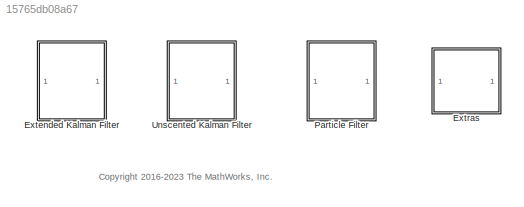
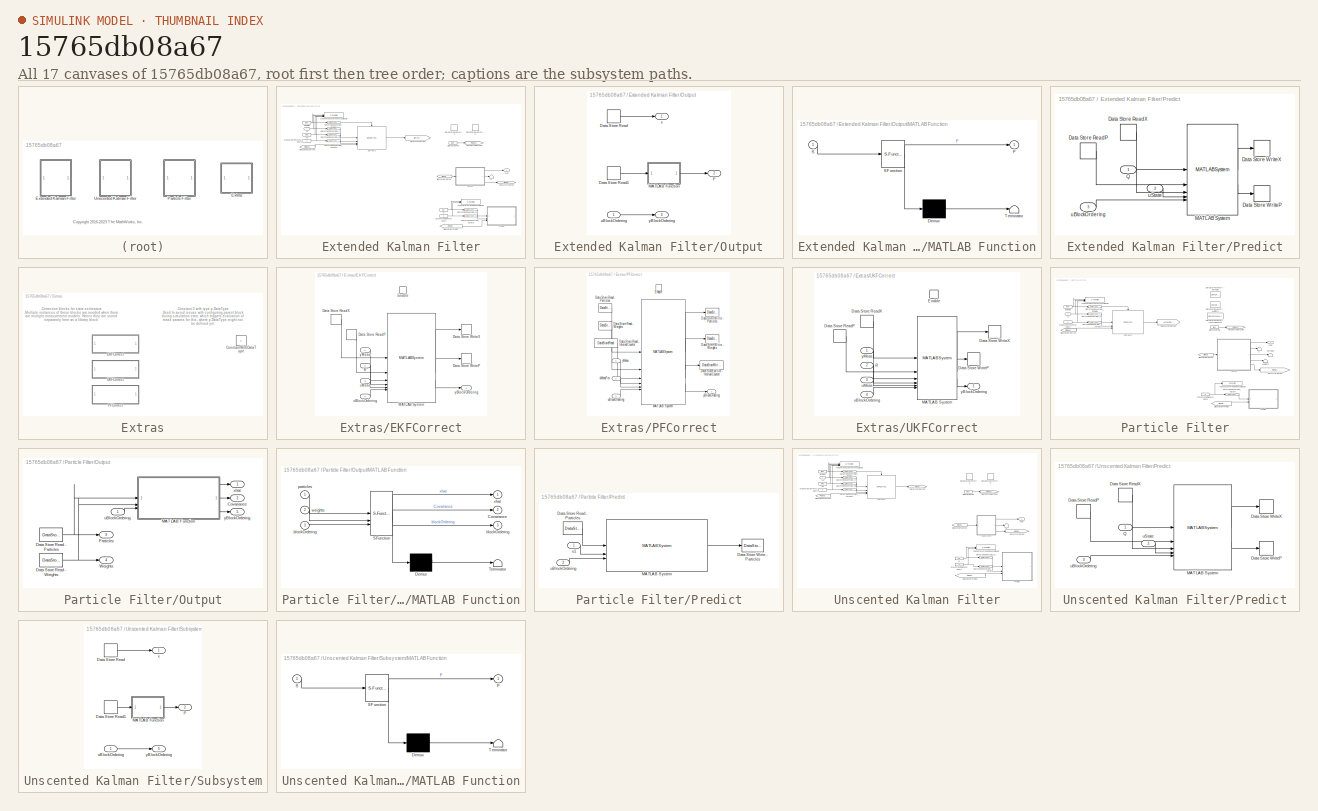
[diagram: thumbnail index - all 17 canvases of the model, root first then tree order]
MODEL slx_15765db08a67
KIND library
CONFIG AbsTol = auto
CONFIG EnableMultiTasking = off
CONFIG FixedStep = auto
CONFIG MaxStep = auto
CONFIG MinStep = auto
CONFIG RelTol = 1e-3
CONFIG SampleTimeConstraint = Unconstrained
CONFIG SolverName = VariableStepAuto
CONFIG StartTime = 0.0
CONFIG StopTime = 10.0
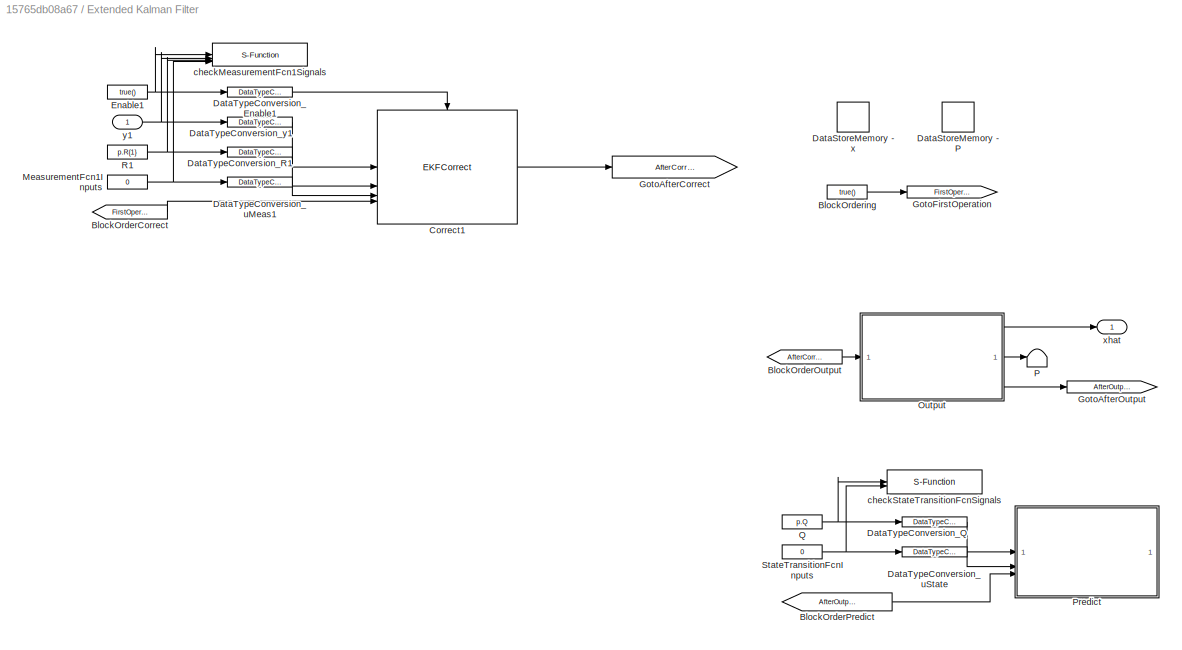
BLOCK [SubSystem] Extended Kalman Filter
BLOCK [From] Extended Kalman Filter/BlockOrderCorrect
  GotoTag = FirstOperation
BLOCK [From] Extended Kalman Filter/BlockOrderOutput
  GotoTag = AfterCorrect
BLOCK [From] Extended Kalman Filter/BlockOrderPredict
  GotoTag = AfterOutput
BLOCK [Constant] Extended Kalman Filter/BlockOrdering
  OutDataTypeStr = boolean
  Value = true()
BLOCK [Reference] Extended Kalman Filter/Correct1  REF=$bdroot/Extras/EKFCorrect
  SourceBlock = $bdroot/Extras/EKFCorrect
  SourceType = EKFCorrect
BLOCK [DataStoreMemory] Extended Kalman Filter/DataStoreMemory - P
  DataStoreName = P
  InitialValue = p.InitialCovariance
  OutDataTypeStr = p.DataType
  ShowAdditionalParam = off
BLOCK [DataStoreMemory] Extended Kalman Filter/DataStoreMemory - x
  DataStoreName = x
  InitialValue = p.InitialState
  OutDataTypeStr = p.DataType
  ShowAdditionalParam = off
BLOCK [DataTypeConversion] Extended Kalman Filter/DataTypeConversion_Enable1
  OutDataTypeStr = boolean
  RndMeth = Floor
  SaturateOnIntegerOverflow = off
BLOCK [DataTypeConversion] Extended Kalman Filter/DataTypeConversion_Q
  OutDataTypeStr = p.DataType
  RndMeth = Floor
  SaturateOnIntegerOverflow = off
BLOCK [DataTypeConversion] Extended Kalman Filter/DataTypeConversion_R1
  OutDataTypeStr = p.DataType
  RndMeth = Floor
  SaturateOnIntegerOverflow = off
BLOCK [DataTypeConversion] Extended Kalman Filter/DataTypeConversion_uMeas1
  OutDataTypeStr = p.DataType
  RndMeth = Floor
  SaturateOnIntegerOverflow = off
BLOCK [DataTypeConversion] Extended Kalman Filter/DataTypeConversion_uState
  OutDataTypeStr = p.DataType
  RndMeth = Floor
  SaturateOnIntegerOverflow = off
BLOCK [DataTypeConversion] Extended Kalman Filter/DataTypeConversion_y1
  OutDataTypeStr = p.DataType
  RndMeth = Floor
  SaturateOnIntegerOverflow = off
BLOCK [Constant] Extended Kalman Filter/Enable1
  SampleTime = p.SampleTimes.MeasurementFcn(1)
  Value = true()
BLOCK [Goto] Extended Kalman Filter/GotoAfterCorrect
  GotoTag = AfterCorrect
BLOCK [Goto] Extended Kalman Filter/GotoAfterOutput
  GotoTag = AfterOutput
BLOCK [Goto] Extended Kalman Filter/GotoFirstOperation
  GotoTag = FirstOperation
BLOCK [Constant] Extended Kalman Filter/MeasurementFcn1Inputs
  OutDataTypeStr = p.DataType
  SampleTime = p.SampleTimes.MeasurementFcn(1)
  Value = 0
BLOCK [SubSystem] Extended Kalman Filter/Output
  SystemSampleTime = p.SampleTimes.Output
  TreatAsAtomicUnit = on
BLOCK [DataStoreRead] Extended Kalman Filter/Output/Data Store Read
  DataStoreName = x
  IndexOptions = Index vector (dialog)
  Indices = 1
  OutputSizes = 1
BLOCK [DataStoreRead] Extended Kalman Filter/Output/Data Store Read1
  DataStoreName = P
  IndexOptions = Index vector (dialog)
  Indices = 1
  OutputSizes = 1
BLOCK [SubSystem] Extended Kalman Filter/Output/MATLAB Function
  ErrorFcn = Stateflow.Translate.translate
  PermitHierarchicalResolution = ExplicitOnly
  SFBlockType = MATLAB Function
  TreatAsAtomicUnit = on
BLOCK [Demux] Extended Kalman Filter/Output/MATLAB Function/ Demux 
  Outputs = 1
BLOCK [S-Function] Extended Kalman Filter/Output/MATLAB Function/ SFunction 
  EnableBusSupport = off
  FunctionName = sf_sfun
  PortCounts = [1 2]
  SFcnIsStateOwnerBlock = off
  SFunctionDeploymentMode = off
  Tag = Stateflow S-Function 3
BLOCK [Terminator] Extended Kalman Filter/Output/MATLAB Function/ Terminator 
BLOCK [Outport] Extended Kalman Filter/Output/MATLAB Function/P
BLOCK [Inport] Extended Kalman Filter/Output/MATLAB Function/S
BLOCK [Outport] Extended Kalman Filter/Output/P
  Port = 2
  VectorParamsAs1DForOutWhenUnconnected = off
BLOCK [Inport] Extended Kalman Filter/Output/uBlockOrdering
BLOCK [Outport] Extended Kalman Filter/Output/x
  VectorParamsAs1DForOutWhenUnconnected = off
BLOCK [Outport] Extended Kalman Filter/Output/yBlockOrdering
  Port = 3
  VectorParamsAs1DForOutWhenUnconnected = off
BLOCK [Terminator] Extended Kalman Filter/P
BLOCK [SubSystem] Extended Kalman Filter/Predict
  SystemSampleTime = p.SampleTimes.StateTransitionFcn
  TreatAsAtomicUnit = on
BLOCK [DataStoreRead] Extended Kalman Filter/Predict/Data Store ReadP
  DataStoreName = P
  IndexOptions = Index vector (dialog)
  Indices = 1
  OutputSizes = 1
BLOCK [DataStoreRead] Extended Kalman Filter/Predict/Data Store ReadX
  DataStoreName = x
  IndexOptions = Index vector (dialog)
  Indices = 1
  OutputSizes = 1
BLOCK [DataStoreWrite] Extended Kalman Filter/Predict/Data Store WriteP
  DataStoreName = P
  IndexOptions = Index vector (dialog)
  Indices = 1
  OutputSizes = 1
BLOCK [DataStoreWrite] Extended Kalman Filter/Predict/Data Store WriteX
  DataStoreName = x
  IndexOptions = Index vector (dialog)
  Indices = 1
  OutputSizes = 1
BLOCK [MATLABSystem] Extended Kalman Filter/Predict/MATLAB System
  DataType = DataType
  DlgParamStruct = pS
  MaskType = matlabshared.tracking.internal.blocks.ekfPredictFcn
  SLFcn = SLFcnsToRegister
  SimulateUsing = Code generation
  System = matlabshared.tracking.internal.blocks.ekfPredictFcn
BLOCK [Inport] Extended Kalman Filter/Predict/Q
  SampleTime = SampleTime
BLOCK [Inport] Extended Kalman Filter/Predict/uBlockOrdering
  Port = 3
  SampleTime = SampleTime
BLOCK [Inport] Extended Kalman Filter/Predict/uState
  Port = 2
  SampleTime = SampleTime
BLOCK [Constant] Extended Kalman Filter/Q
  SampleTime = p.SampleTimes.StateTransitionFcn
  Value = p.Q
BLOCK [Constant] Extended Kalman Filter/R1
  SampleTime = p.SampleTimes.MeasurementFcn(1)
  Value = p.R{1}
BLOCK [Constant] Extended Kalman Filter/StateTransitionFcnInputs
  OutDataTypeStr = p.DataType
  SampleTime = p.SampleTimes.StateTransitionFcn
  Value = 0
BLOCK [S-Function] Extended Kalman Filter/checkMeasurementFcn1Signals
  EnableBusSupport = off
  FunctionName = ekfukfCheckSignals
  Parameters = signalCheck.BlockPath, signalCheck.MeasurementFcn{1}.PortNames, signalCheck.MeasurementFcn{1}.SampleTime, signalCheck.DataType, signalCheck.MeasurementFcn{1}.PortDimensions, 1, signalCheck.MeasurementFcn{1}.HasAdditiveNoise
  SFcnIsStateOwnerBlock = off
  SFunctionDeploymentMode = off
BLOCK [S-Function] Extended Kalman Filter/checkStateTransitionFcnSignals
  EnableBusSupport = off
  FunctionName = ekfukfCheckSignals
  Parameters = signalCheck.BlockPath, signalCheck.StateTransitionFcn.PortNames, signalCheck.StateTransitionFcn.SampleTime, signalCheck.DataType, signalCheck.StateTransitionFcn.PortDimensions, 0, signalCheck.StateTransitionFcn.HasAdditiveNoise
  SFcnIsStateOwnerBlock = off
  SFunctionDeploymentMode = off
BLOCK [Outport] Extended Kalman Filter/xhat
  VectorParamsAs1DForOutWhenUnconnected = off
BLOCK [Inport] Extended Kalman Filter/y1
BLOCK [SubSystem] Extras
BLOCK [Constant] Extras/ConstantWithDataType
  OutDataTypeStr = p.DataType
  Value = 0
BLOCK [SubSystem] Extras/EKFCorrect
  SystemSampleTime = p.SampleTimes.MeasurementFcn(1)
  TreatAsAtomicUnit = on
BLOCK [DataStoreRead] Extras/EKFCorrect/Data Store ReadP
  DataStoreName = P
  IndexOptions = Index vector (dialog)
  Indices = 1
  OutputSizes = 1
BLOCK [DataStoreRead] Extras/EKFCorrect/Data Store ReadX
  DataStoreName = x
  IndexOptions = Index vector (dialog)
  Indices = 1
  OutputSizes = 1
BLOCK [DataStoreWrite] Extras/EKFCorrect/Data Store WriteP
  DataStoreName = P
  IndexOptions = Index vector (dialog)
  Indices = 1
  OutputSizes = 1
BLOCK [DataStoreWrite] Extras/EKFCorrect/Data Store WriteX
  DataStoreName = x
  IndexOptions = Index vector (dialog)
  Indices = 1
  OutputSizes = 1
BLOCK [EnablePort] Extras/EKFCorrect/Enable
BLOCK [MATLABSystem] Extras/EKFCorrect/MATLAB System
  DataType = DataType
  DlgParamStruct = pM
  MaskType = matlabshared.tracking.internal.blocks.ekfCorrectFcn
  SLFcn = SLFcnsToRegister
  SampleTime = SampleTime
  SimulateUsing = Code generation
  System = matlabshared.tracking.internal.blocks.ekfCorrectFcn
BLOCK [Inport] Extras/EKFCorrect/R
  Port = 2
  SampleTime = SampleTime
BLOCK [Inport] Extras/EKFCorrect/uBlockOrdering
  Port = 4
  SampleTime = SampleTime
BLOCK [Inport] Extras/EKFCorrect/uMeas
  Port = 3
  SampleTime = SampleTime
BLOCK [Outport] Extras/EKFCorrect/yBlockOrdering
  VectorParamsAs1DForOutWhenUnconnected = off
BLOCK [Inport] Extras/EKFCorrect/yMeas
  SampleTime = SampleTime
BLOCK [SubSystem] Extras/PFCorrect
  SystemSampleTime = p.SampleTimes.MeasurementFcn(1)
  TreatAsAtomicUnit = on
BLOCK [DataStoreRead] Extras/PFCorrect/Data Store Read - IntervalCounter
  DataStoreName = IntervalCounter
  IndexOptions = Index vector (dialog)
  Indices = 1
  OutputSizes = 1
BLOCK [DataStoreRead] Extras/PFCorrect/Data Store Read - Particles
  DataStoreName = Particles
  IndexOptions = Index vector (dialog)
  Indices = 1
  OutputSizes = 1
BLOCK [DataStoreRead] Extras/PFCorrect/Data Store Read - Weights
  DataStoreName = Weights
  IndexOptions = Index vector (dialog)
  Indices = 1
  OutputSizes = 1
BLOCK [DataStoreWrite] Extras/PFCorrect/Data Store Write - IntervalCounter
  DataStoreName = IntervalCounter
  IndexOptions = Index vector (dialog)
  Indices = 1
  OutputSizes = 1
BLOCK [DataStoreWrite] Extras/PFCorrect/Data Store Write - Particles
  DataStoreName = Particles
  IndexOptions = Index vector (dialog)
  Indices = 1
  OutputSizes = 1
BLOCK [DataStoreWrite] Extras/PFCorrect/Data Store Write - Weights
  DataStoreName = Weights
  IndexOptions = Index vector (dialog)
  Indices = 1
  OutputSizes = 1
BLOCK [EnablePort] Extras/PFCorrect/Enable
BLOCK [MATLABSystem] Extras/PFCorrect/MATLAB System
  DataType = pRegisterSLFcn.DataType
  DlgParamStruct = pM
  MaskType = matlabshared.tracking.internal.blocks.pfCorrectFcn
  SLFcn = pRegisterSLFcn.SLFcnsToRegister
  SampleTime = SampleTime
  SimulateUsing = Code generation
  System = matlabshared.tracking.internal.blocks.pfCorrectFcn
BLOCK [Inport] Extras/PFCorrect/uBlockOrdering
  Port = 3
  SampleTime = SampleTime
BLOCK [Inport] Extras/PFCorrect/uMeasFcn
  Port = 2
  SampleTime = SampleTime
BLOCK [Outport] Extras/PFCorrect/yBlockOrdering
  VectorParamsAs1DForOutWhenUnconnected = off
BLOCK [Inport] Extras/PFCorrect/yMeas
  SampleTime = SampleTime
BLOCK [SubSystem] Extras/UKFCorrect
  SystemSampleTime = p.SampleTimes.MeasurementFcn(1)
  TreatAsAtomicUnit = on
BLOCK [DataStoreRead] Extras/UKFCorrect/Data Store ReadP
  DataStoreName = P
  IndexOptions = Index vector (dialog)
  Indices = 1
  OutputSizes = 1
BLOCK [DataStoreRead] Extras/UKFCorrect/Data Store ReadX
  DataStoreName = x
  IndexOptions = Index vector (dialog)
  Indices = 1
  OutputSizes = 1
BLOCK [DataStoreWrite] Extras/UKFCorrect/Data Store WriteP
  DataStoreName = P
  IndexOptions = Index vector (dialog)
  Indices = 1
  OutputSizes = 1
BLOCK [DataStoreWrite] Extras/UKFCorrect/Data Store WriteX
  DataStoreName = x
  IndexOptions = Index vector (dialog)
  Indices = 1
  OutputSizes = 1
BLOCK [EnablePort] Extras/UKFCorrect/Enable
BLOCK [MATLABSystem] Extras/UKFCorrect/MATLAB System
  DataType = DataType
  DlgParamStruct = pM
  MaskType = matlabshared.tracking.internal.blocks.ukfCorrectFcn
  SLFcn = SLFcnsToRegister
  SampleTime = SampleTime
  SimulateUsing = Code generation
  System = matlabshared.tracking.internal.blocks.ukfCorrectFcn
BLOCK [Inport] Extras/UKFCorrect/R
  Port = 2
  SampleTime = SampleTime
BLOCK [Inport] Extras/UKFCorrect/uBlockOrdering
  Port = 4
  SampleTime = SampleTime
BLOCK [Inport] Extras/UKFCorrect/uMeas
  Port = 3
  SampleTime = SampleTime
BLOCK [Outport] Extras/UKFCorrect/yBlockOrdering
  VectorParamsAs1DForOutWhenUnconnected = off
BLOCK [Inport] Extras/UKFCorrect/yMeas
  SampleTime = SampleTime
BLOCK [SubSystem] Particle Filter
BLOCK [From] Particle Filter/BlockOrderCorrect
  GotoTag = FirstOperation
BLOCK [From] Particle Filter/BlockOrderOutput
  GotoTag = AfterCorrect
BLOCK [From] Particle Filter/BlockOrderPredict
  GotoTag = AfterOutput
BLOCK [Constant] Particle Filter/BlockOrdering
  OutDataTypeStr = boolean
  Value = true()
BLOCK [Reference] Particle Filter/Correct1  REF=$bdroot/Extras/PFCorrect
  SourceBlock = $bdroot/Extras/PFCorrect
  SourceType = PFCorrect
BLOCK [DataStoreMemory] Particle Filter/DataStoreMemory - IntervalCounter
  DataStoreName = IntervalCounter
  OutDataTypeStr = p.DataType
  ShowAdditionalParam = off
  VectorParams1D = off
BLOCK [DataStoreMemory] Particle Filter/DataStoreMemory - Particles
  DataStoreName = Particles
  InitialValue = p.Particles
  OutDataTypeStr = p.DataType
  ShowAdditionalParam = off
  VectorParams1D = off
BLOCK [DataStoreMemory] Particle Filter/DataStoreMemory - Weights
  DataStoreName = Weights
  InitialValue = p.Weights
  OutDataTypeStr = p.DataType
  ShowAdditionalParam = off
  VectorParams1D = off
BLOCK [DataTypeConversion] Particle Filter/DataTypeConversion_Enable1
  OutDataTypeStr = boolean
  RndMeth = Floor
  SaturateOnIntegerOverflow = off
BLOCK [DataTypeConversion] Particle Filter/DataTypeConversion_uMeas1
  OutDataTypeStr = p.DataType
  RndMeth = Floor
  SaturateOnIntegerOverflow = off
BLOCK [DataTypeConversion] Particle Filter/DataTypeConversion_uState
  OutDataTypeStr = p.DataType
  RndMeth = Floor
  SaturateOnIntegerOverflow = off
BLOCK [DataTypeConversion] Particle Filter/DataTypeConversion_y1
  OutDataTypeStr = p.DataType
  RndMeth = Floor
  SaturateOnIntegerOverflow = off
BLOCK [Constant] Particle Filter/Enable1
  SampleTime = p.SampleTimes.MeasurementFcn(1)
  Value = true()
BLOCK [Goto] Particle Filter/GotoAfterCorrect
  GotoTag = AfterCorrect
BLOCK [Goto] Particle Filter/GotoAfterOutput
  GotoTag = AfterOutput
BLOCK [Goto] Particle Filter/GotoFirstOperation
  GotoTag = FirstOperation
BLOCK [Constant] Particle Filter/MeasurementFcn1Inputs
  OutDataTypeStr = p.DataType
  SampleTime = p.SampleTimes.MeasurementFcn(1)
  Value = 0
BLOCK [SubSystem] Particle Filter/Output
  SystemSampleTime = p.SampleTimes.Output
  TreatAsAtomicUnit = on
BLOCK [Outport] Particle Filter/Output/Covariance
  Port = 2
  VectorParamsAs1DForOutWhenUnconnected = off
BLOCK [DataStoreRead] Particle Filter/Output/Data Store Read - Particles
  DataStoreName = Particles
  IndexOptions = Index vector (dialog)
  Indices = 1
  OutputSizes = 1
BLOCK [DataStoreRead] Particle Filter/Output/Data Store Read - Weights
  DataStoreName = Weights
  IndexOptions = Index vector (dialog)
  Indices = 1
  OutputSizes = 1
BLOCK [SubSystem] Particle Filter/Output/MATLAB Function
  ErrorFcn = Stateflow.Translate.translate
  PermitHierarchicalResolution = ExplicitOnly
  SFBlockType = MATLAB Function
  TreatAsAtomicUnit = on
BLOCK [Demux] Particle Filter/Output/MATLAB Function/ Demux 
  Outputs = 1
BLOCK [S-Function] Particle Filter/Output/MATLAB Function/ SFunction 
  EnableBusSupport = off
  FunctionName = sf_sfun
  Parameters = pOutputs
  PortCounts = [3 4]
  SFcnIsStateOwnerBlock = off
  SFunctionDeploymentMode = off
  Tag = Stateflow S-Function 19
BLOCK [Terminator] Particle Filter/Output/MATLAB Function/ Terminator 
BLOCK [Outport] Particle Filter/Output/MATLAB Function/Covariance
  Port = 2
  VectorParamsAs1DForOutWhenUnconnected = off
BLOCK [Outport] Particle Filter/Output/MATLAB Function/blockOrdering
  Port = 3
  VectorParamsAs1DForOutWhenUnconnected = off
BLOCK [Inport] Particle Filter/Output/MATLAB Function/blockOrdering 
  Port = 3
BLOCK [Inport] Particle Filter/Output/MATLAB Function/particles
BLOCK [Inport] Particle Filter/Output/MATLAB Function/weights
  Port = 2
BLOCK [Outport] Particle Filter/Output/MATLAB Function/xhat
  VectorParamsAs1DForOutWhenUnconnected = off
BLOCK [Outport] Particle Filter/Output/Particles
  Port = 3
  VectorParamsAs1DForOutWhenUnconnected = off
BLOCK [Outport] Particle Filter/Output/Weights
  Port = 4
  VectorParamsAs1DForOutWhenUnconnected = off
BLOCK [Inport] Particle Filter/Output/uBlockOrdering
BLOCK [Outport] Particle Filter/Output/xhat
  VectorParamsAs1DForOutWhenUnconnected = off
BLOCK [Outport] Particle Filter/Output/yBlockOrdering
  Port = 5
  VectorParamsAs1DForOutWhenUnconnected = off
BLOCK [Terminator] Particle Filter/P
BLOCK [Terminator] Particle Filter/Particles
BLOCK [SubSystem] Particle Filter/Predict
  SystemSampleTime = p.SampleTimes.StateTransitionFcn
  TreatAsAtomicUnit = on
BLOCK [DataStoreRead] Particle Filter/Predict/Data Store Read - Particles
  DataStoreName = Particles
  IndexOptions = Index vector (dialog)
  Indices = 1
  OutputSizes = 1
BLOCK [DataStoreWrite] Particle Filter/Predict/Data Store Write - Particles
  DataStoreName = Particles
  IndexOptions = Index vector (dialog)
  Indices = 1
  OutputSizes = 1
BLOCK [MATLABSystem] Particle Filter/Predict/MATLAB System
  DataType = DataType
  DlgParamStruct = pS
  MaskType = matlabshared.tracking.internal.blocks.pfPredictFcn
  SLFcn = SLFcnsToRegister
  SimulateUsing = Code generation
  System = matlabshared.tracking.internal.blocks.pfPredictFcn
BLOCK [Inport] Particle Filter/Predict/u1
  SampleTime = SampleTime
BLOCK [Inport] Particle Filter/Predict/uBlockOrdering
  Port = 2
BLOCK [Constant] Particle Filter/StateTransitionFcnInputs
  OutDataTypeStr = p.DataType
  SampleTime = p.SampleTimes.StateTransitionFcn
  Value = 0
BLOCK [Terminator] Particle Filter/Weights
BLOCK [S-Function] Particle Filter/checkMeasurementFcn1Signals
  EnableBusSupport = off
  FunctionName = pfCheckSignals
  Parameters = signalCheck.BlockPath, signalCheck.MeasurementFcn{1}.PortNames, signalCheck.MeasurementFcn{1}.SampleTime, signalCheck.DataType, signalCheck.MeasurementFcn{1}.PortDimensions
  SFcnIsStateOwnerBlock = off
  SFunctionDeploymentMode = off
BLOCK [S-Function] Particle Filter/checkStateTransitionFcnSignals
  EnableBusSupport = off
  FunctionName = pfCheckSignals
  Parameters = signalCheck.BlockPath, signalCheck.StateTransitionFcn.PortNames, signalCheck.StateTransitionFcn.SampleTime, signalCheck.DataType, signalCheck.StateTransitionFcn.PortDimensions
  SFcnIsStateOwnerBlock = off
  SFunctionDeploymentMode = off
BLOCK [Outport] Particle Filter/xhat
  VectorParamsAs1DForOutWhenUnconnected = off
BLOCK [Inport] Particle Filter/y1
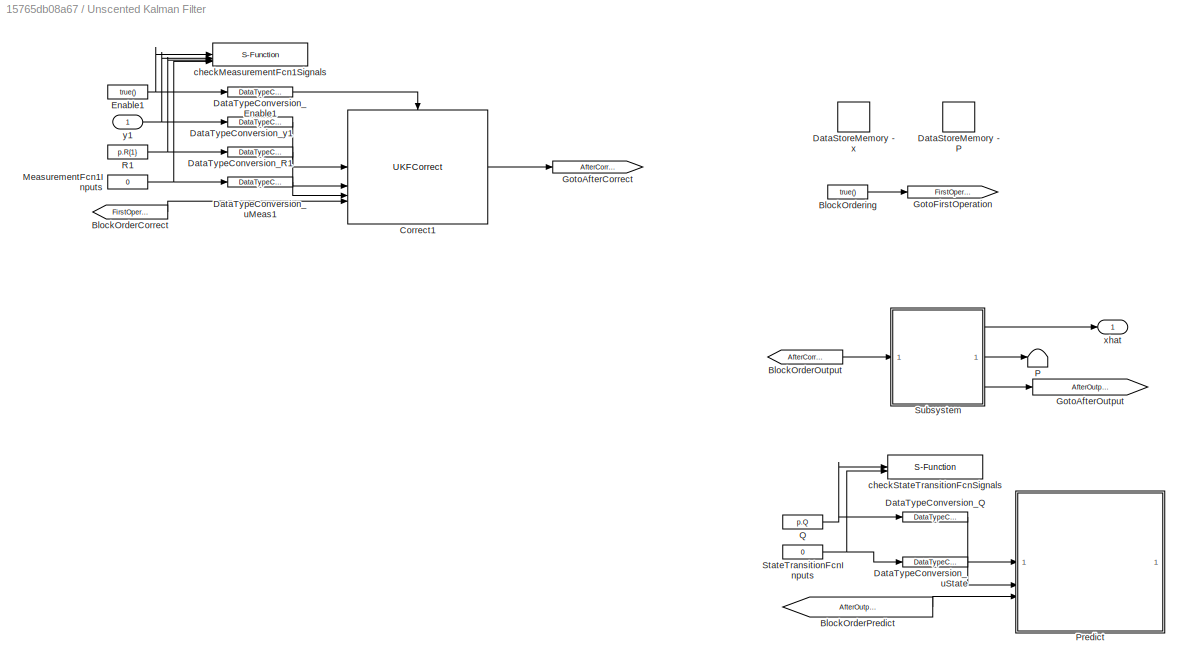
BLOCK [SubSystem] Unscented Kalman Filter
BLOCK [From] Unscented Kalman Filter/BlockOrderCorrect
  GotoTag = FirstOperation
BLOCK [From] Unscented Kalman Filter/BlockOrderOutput
  GotoTag = AfterCorrect
BLOCK [From] Unscented Kalman Filter/BlockOrderPredict
  GotoTag = AfterOutput
BLOCK [Constant] Unscented Kalman Filter/BlockOrdering
  OutDataTypeStr = boolean
  Value = true()
BLOCK [Reference] Unscented Kalman Filter/Correct1  REF=$bdroot/Extras/UKFCorrect
  SourceBlock = $bdroot/Extras/UKFCorrect
  SourceType = UKFCorrect
BLOCK [DataStoreMemory] Unscented Kalman Filter/DataStoreMemory - P
  DataStoreName = P
  InitialValue = p.InitialCovariance
  OutDataTypeStr = p.DataType
  ShowAdditionalParam = off
BLOCK [DataStoreMemory] Unscented Kalman Filter/DataStoreMemory - x
  DataStoreName = x
  InitialValue = p.InitialState
  OutDataTypeStr = p.DataType
  ShowAdditionalParam = off
BLOCK [DataTypeConversion] Unscented Kalman Filter/DataTypeConversion_Enable1
  OutDataTypeStr = boolean
  RndMeth = Floor
  SaturateOnIntegerOverflow = off
BLOCK [DataTypeConversion] Unscented Kalman Filter/DataTypeConversion_Q
  OutDataTypeStr = p.DataType
  RndMeth = Floor
  SaturateOnIntegerOverflow = off
BLOCK [DataTypeConversion] Unscented Kalman Filter/DataTypeConversion_R1
  OutDataTypeStr = p.DataType
  RndMeth = Floor
  SaturateOnIntegerOverflow = off
BLOCK [DataTypeConversion] Unscented Kalman Filter/DataTypeConversion_uMeas1
  OutDataTypeStr = p.DataType
  RndMeth = Floor
  SaturateOnIntegerOverflow = off
BLOCK [DataTypeConversion] Unscented Kalman Filter/DataTypeConversion_uState
  OutDataTypeStr = p.DataType
  RndMeth = Floor
  SaturateOnIntegerOverflow = off
BLOCK [DataTypeConversion] Unscented Kalman Filter/DataTypeConversion_y1
  OutDataTypeStr = p.DataType
  RndMeth = Floor
  SaturateOnIntegerOverflow = off
BLOCK [Constant] Unscented Kalman Filter/Enable1
  SampleTime = p.SampleTimes.MeasurementFcn(1)
  Value = true()
BLOCK [Goto] Unscented Kalman Filter/GotoAfterCorrect
  GotoTag = AfterCorrect
BLOCK [Goto] Unscented Kalman Filter/GotoAfterOutput
  GotoTag = AfterOutput
BLOCK [Goto] Unscented Kalman Filter/GotoFirstOperation
  GotoTag = FirstOperation
BLOCK [Constant] Unscented Kalman Filter/MeasurementFcn1Inputs
  OutDataTypeStr = p.DataType
  SampleTime = p.SampleTimes.MeasurementFcn(1)
  Value = 0
BLOCK [Terminator] Unscented Kalman Filter/P
BLOCK [SubSystem] Unscented Kalman Filter/Predict
  SystemSampleTime = p.SampleTimes.StateTransitionFcn
  TreatAsAtomicUnit = on
BLOCK [DataStoreRead] Unscented Kalman Filter/Predict/Data Store ReadP
  DataStoreName = P
  IndexOptions = Index vector (dialog)
  Indices = 1
  OutputSizes = 1
BLOCK [DataStoreRead] Unscented Kalman Filter/Predict/Data Store ReadX
  DataStoreName = x
  IndexOptions = Index vector (dialog)
  Indices = 1
  OutputSizes = 1
BLOCK [DataStoreWrite] Unscented Kalman Filter/Predict/Data Store WriteP
  DataStoreName = P
  IndexOptions = Index vector (dialog)
  Indices = 1
  OutputSizes = 1
BLOCK [DataStoreWrite] Unscented Kalman Filter/Predict/Data Store WriteX
  DataStoreName = x
  IndexOptions = Index vector (dialog)
  Indices = 1
  OutputSizes = 1
BLOCK [MATLABSystem] Unscented Kalman Filter/Predict/MATLAB System
  DataType = DataType
  DlgParamStruct = pS
  MaskType = matlabshared.tracking.internal.blocks.ukfPredictFcn
  SLFcn = SLFcnsToRegister
  SimulateUsing = Code generation
  System = matlabshared.tracking.internal.blocks.ukfPredictFcn
BLOCK [Inport] Unscented Kalman Filter/Predict/Q
  SampleTime = SampleTime
BLOCK [Inport] Unscented Kalman Filter/Predict/uBlockOrdering
  Port = 3
BLOCK [Inport] Unscented Kalman Filter/Predict/uState
  Port = 2
  SampleTime = SampleTime
BLOCK [Constant] Unscented Kalman Filter/Q
  SampleTime = p.SampleTimes.StateTransitionFcn
  Value = p.Q
BLOCK [Constant] Unscented Kalman Filter/R1
  SampleTime = p.SampleTimes.MeasurementFcn(1)
  Value = p.R{1}
BLOCK [Constant] Unscented Kalman Filter/StateTransitionFcnInputs
  OutDataTypeStr = p.DataType
  SampleTime = p.SampleTimes.StateTransitionFcn
  Value = 0
BLOCK [SubSystem] Unscented Kalman Filter/Subsystem
  SystemSampleTime = p.SampleTimes.Output
  TreatAsAtomicUnit = on
BLOCK [DataStoreRead] Unscented Kalman Filter/Subsystem/Data Store Read
  DataStoreName = x
  IndexOptions = Index vector (dialog)
  Indices = 1
  OutputSizes = 1
BLOCK [DataStoreRead] Unscented Kalman Filter/Subsystem/Data Store Read1
  DataStoreName = P
  IndexOptions = Index vector (dialog)
  Indices = 1
  OutputSizes = 1
BLOCK [SubSystem] Unscented Kalman Filter/Subsystem/MATLAB Function
  ErrorFcn = Stateflow.Translate.translate
  PermitHierarchicalResolution = ExplicitOnly
  SFBlockType = MATLAB Function
  TreatAsAtomicUnit = on
BLOCK [Demux] Unscented Kalman Filter/Subsystem/MATLAB Function/ Demux 
  Outputs = 1
BLOCK [S-Function] Unscented Kalman Filter/Subsystem/MATLAB Function/ SFunction 
  EnableBusSupport = off
  FunctionName = sf_sfun
  PortCounts = [1 2]
  SFcnIsStateOwnerBlock = off
  SFunctionDeploymentMode = off
  Tag = Stateflow S-Function 4
BLOCK [Terminator] Unscented Kalman Filter/Subsystem/MATLAB Function/ Terminator 
BLOCK [Outport] Unscented Kalman Filter/Subsystem/MATLAB Function/P
BLOCK [Inport] Unscented Kalman Filter/Subsystem/MATLAB Function/S
BLOCK [Outport] Unscented Kalman Filter/Subsystem/P
  Port = 2
  VectorParamsAs1DForOutWhenUnconnected = off
BLOCK [Inport] Unscented Kalman Filter/Subsystem/uBlockOrdering
BLOCK [Outport] Unscented Kalman Filter/Subsystem/x
  VectorParamsAs1DForOutWhenUnconnected = off
BLOCK [Outport] Unscented Kalman Filter/Subsystem/yBlockOrdering
  Port = 3
  VectorParamsAs1DForOutWhenUnconnected = off
BLOCK [S-Function] Unscented Kalman Filter/checkMeasurementFcn1Signals
  EnableBusSupport = off
  FunctionName = ekfukfCheckSignals
  Parameters = signalCheck.BlockPath, signalCheck.MeasurementFcn{1}.PortNames, signalCheck.MeasurementFcn{1}.SampleTime, signalCheck.DataType, signalCheck.MeasurementFcn{1}.PortDimensions, 1, signalCheck.MeasurementFcn{1}.HasAdditiveNoise
  SFcnIsStateOwnerBlock = off
  SFunctionDeploymentMode = off
BLOCK [S-Function] Unscented Kalman Filter/checkStateTransitionFcnSignals
  EnableBusSupport = off
  FunctionName = ekfukfCheckSignals
  Parameters = signalCheck.BlockPath, signalCheck.StateTransitionFcn.PortNames, signalCheck.StateTransitionFcn.SampleTime, signalCheck.DataType, signalCheck.StateTransitionFcn.PortDimensions, 0, signalCheck.StateTransitionFcn.HasAdditiveNoise
  SFcnIsStateOwnerBlock = off
  SFunctionDeploymentMode = off
BLOCK [Outport] Unscented Kalman Filter/xhat
  VectorParamsAs1DForOutWhenUnconnected = off
BLOCK [Inport] Unscented Kalman Filter/y1
ANNOTATION (root): <copyright redacted>
ANNOTATION Extras: -Constant 0 with type p.DataType -Used to avoid issues with configuring parent block during simulation start, which triggers evaluation of mask params for this, where p.DataType might not be defined yet
ANNOTATION Extras: -Correction blocks for state estimators -Multiple instances of these blocks are needed when there are multiple measurement models. Hence they are stored separately here as a library block
CHART Extended Kalman Filter/Output/MATLAB Function states=1 transitions=1
  STATE_LABEL 'eML_blk_kernel()'
  STATE_LABEL "SCRIPT:\nfunction P = fcn(S)\n    \n    % Get back Covariance from Square-root Covariance\n    P = S*S';\n    \nend\n"
CHART Unscented Kalman Filter/Subsystem/MATLAB Function states=1 transitions=1
  STATE_LABEL 'eML_blk_kernel()'
  STATE_LABEL "SCRIPT:\nfunction P = fcn(S)\n    \n    % Get back Covariance from Square-root Covariance\n    P = S*S';\n    \nend\n"
CHART Particle Filter/Output/MATLAB Function states=1 transitions=1
  STATE_LABEL 'eML_blk_kernel()'
  STATE_LABEL "SCRIPT:\nfunction [xhat,Covariance,blockOrdering] = ...\n    calculateStateAndCovariance(particles,weights,blockOrdering,pOutputs)\n\n%% Quick return if no work is needed\nif strcmp(pOutputs.StateEstimationMethod,'none')\n    xhat = cast(0,'like',particles);\n    Covariance = cast(0,'like',particles);\n    return;\nend\n\n%% Preparation\n% Get the state estimator object\nswitch pOutputs.StateEstimationMethod\n ...<+1554ch>"
CHART  states=0 transitions=0
CHART  states=0 transitions=0
CHART  states=0 transitions=0
